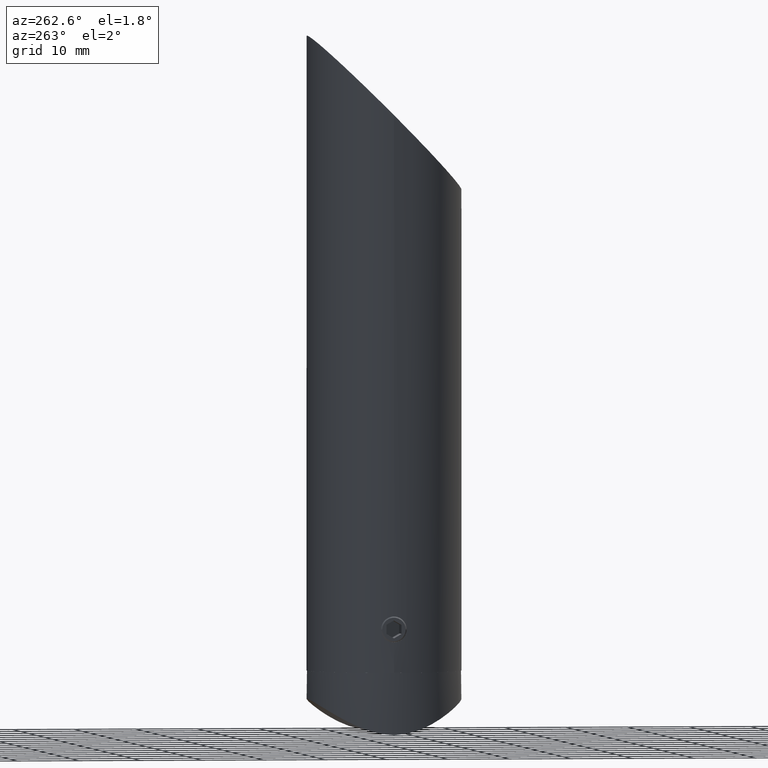
[diagram: clean part render]
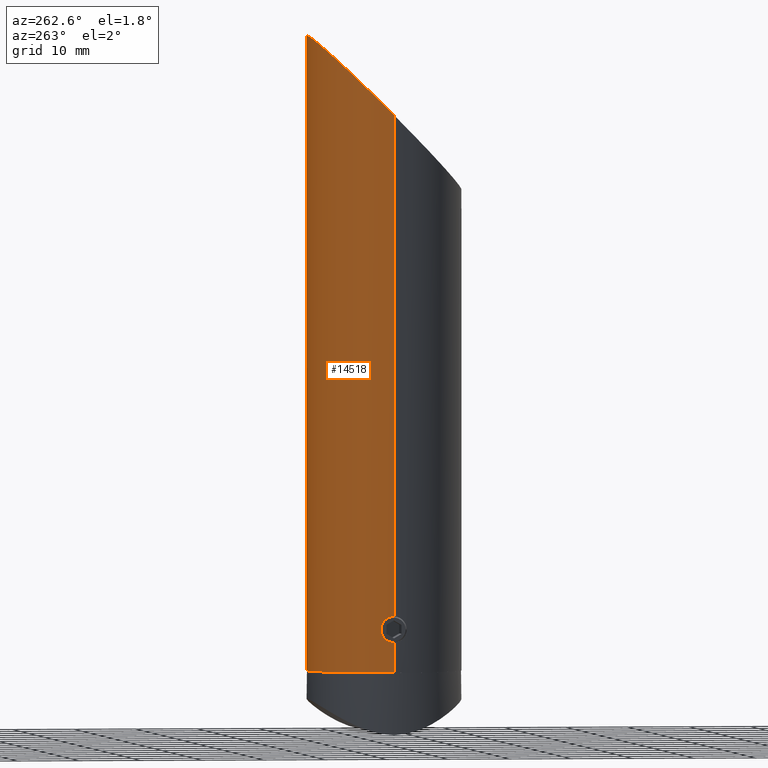
[diagram: same view with one face highlighted and labeled with its STEP entity id]
A machine part, auxiliary view. The second image highlights one B-rep face of the part: STEP entity #14518.
In plain terms, the highlighted cylindrical surface (partial cylindrical patch) has radius 12.5 mm, axis along (-0, -0, -1).
Its self-contained STEP definition (entity closure, byte-faithful):
#115 = ORIENTED_EDGE ( 'NONE', *, *, #15465, .T. ) ;
#137 = DIRECTION ( 'NONE',  ( 1.000000000000000000, 0.0000000000000000000, 0.0000000000000000000 ) ) ;
#420 = CARTESIAN_POINT ( 'NONE',  ( -12.50000000000000000, -9.798520189840709700E-023, 9.099999999999992500 ) ) ;
#421 = AXIS2_PLACEMENT_3D ( 'NONE', #12535, #4142, #1477 ) ;
#484 = CARTESIAN_POINT ( 'NONE',  ( -12.36503985059749600, 1.834949845526010000, 5.942760806442194600 ) ) ;
#547 = AXIS2_PLACEMENT_3D ( 'NONE', #13495, #13553, #137 ) ;
#552 = CARTESIAN_POINT ( 'NONE',  ( -12.50000000000000000, 0.0000000000000000000, 90.00000000000000000 ) ) ;
#573 = CARTESIAN_POINT ( 'NONE',  ( 12.35697594623955100, 1.886269248244662400, 7.933261081111706600 ) ) ;
#588 = VERTEX_POINT ( 'NONE', #1897 ) ;
#628 = CARTESIAN_POINT ( 'NONE',  ( 12.36678782163336800, 1.821665953450994900, 8.053695840792910200 ) ) ;
#689 = CARTESIAN_POINT ( 'NONE',  ( 12.33355821179406500, 2.033241785620691900, 6.457128437399847900 ) ) ;
#1145 = B_SPLINE_CURVE_WITH_KNOTS ( 'NONE', 3,
 ( #11152, #10898, #16858, #11209, #3322, #15412, #7411, #15347, #4493, #4600, #484, #14112, #5982, #7286, #10005, #8698, #16917, #7175, #5874, #9936, #4659, #3087, #15474, #1895, #12649, #10058, #1763, #16794, #1956, #420 ),
 .UNSPECIFIED., .F., .F.,
 ( 4, 2, 2, 2, 2, 2, 2, 2, 2, 2, 2, 2, 2, 2, 4 ),
 ( 0.0000000000000000000, 0.0004110766416146449000, 0.0008221532832292897900, 0.001233229924843934700, 0.001644306566458579600, 0.002466459849687869800, 0.003288613132917160000, 0.003699689774531803600, 0.004110766416146446400, 0.004521843057761090400, 0.004932919699375735300, 0.005343996340990379300, 0.005755072982605023400, 0.006166149624219666500, 0.006577226265834309700 ),
 .UNSPECIFIED. ) ;
#1242 = ORIENTED_EDGE ( 'NONE', *, *, #7181, .T. ) ;
#1477 = DIRECTION ( 'NONE',  ( -1.000000000000000000, 0.0000000000000000000, 0.0000000000000000000 ) ) ;
#1481 = ORIENTED_EDGE ( 'NONE', *, *, #10269, .F. ) ;
#1763 = CARTESIAN_POINT ( 'NONE',  ( -12.48878923632492300, 0.5462078688293376900, 9.032378496588524500 ) ) ;
#1828 = ORIENTED_EDGE ( 'NONE', *, *, #10075, .F. ) ;
#1895 = CARTESIAN_POINT ( 'NONE',  ( -12.45599735624381000, 1.054112223713820300, 8.821410081664508200 ) ) ;
#1897 = CARTESIAN_POINT ( 'NONE',  ( -12.50000000000000000, -9.798520189840709700E-023, 9.099999999999992500 ) ) ;
#1956 = CARTESIAN_POINT ( 'NONE',  ( -12.50000000000000700, 0.1371844661457303200, 9.099999999999994300 ) ) ;
#1982 = CARTESIAN_POINT ( 'NONE',  ( 12.34036526571288800, 1.992047017919822200, 7.678775810402827400 ) ) ;
#2045 = CARTESIAN_POINT ( 'NONE',  ( 12.49768328457756000, 0.2762664775608881200, 4.913662719431551200 ) ) ;
#2602 = LINE ( 'NONE', #8563, #3261 ) ;
#2894 = B_SPLINE_CURVE_WITH_KNOTS ( 'NONE', 3,
 ( #7500, #12680, #11434, #8857, #4526, #4584, #14091, #15449, #8674, #628, #573, #1982, #4636, #10035, #14148, #6021, #6071, #689, #15510, #6126, #17022, #3356, #14208, #15563, #7438, #9907, #16957, #2045, #11563, #3408 ),
 .UNSPECIFIED., .F., .F.,
 ( 4, 2, 2, 2, 2, 2, 2, 2, 2, 2, 2, 2, 2, 2, 4 ),
 ( 0.006577226265834310500, 0.007399174158320364300, 0.007810148104563390300, 0.008221122050806415500, 0.008632095997049442400, 0.009043069943292467500, 0.009454043889535494400, 0.009865017835778519500, 0.01027599178202154600, 0.01068696572826457300, 0.01109793967450759800, 0.01150891362075062400, 0.01233086151323667700, 0.01274183545947970400, 0.01315280940572272900 ),
 .UNSPECIFIED. ) ;
#3087 = CARTESIAN_POINT ( 'NONE',  ( -12.42318353256700700, 1.387157736859880200, 8.582691118360697800 ) ) ;
#3168 = LINE ( 'NONE', #4736, #15912 ) ;
#3261 = VECTOR ( 'NONE', #16836, 1000.000000000000000 ) ;
#3322 = CARTESIAN_POINT ( 'NONE',  ( -12.48225234873649100, 0.6779383900031856800, 5.007679765291994700 ) ) ;
#3356 = CARTESIAN_POINT ( 'NONE',  ( 12.38807301078725400, 1.670798748957215100, 5.720435620869854400 ) ) ;
#3408 = CARTESIAN_POINT ( 'NONE',  ( 12.50000000000000200, 0.0000000000000000000, 4.900000000000008300 ) ) ;
#4142 = DIRECTION ( 'NONE',  ( -0.0000000000000000000, -0.0000000000000000000, -1.000000000000000000 ) ) ;
#4493 = CARTESIAN_POINT ( 'NONE',  ( -12.42301355294200400, 1.388600539506596600, 5.418708178319337600 ) ) ;
#4526 = CARTESIAN_POINT ( 'NONE',  ( 12.45612933409647000, 1.052645575539819200, 8.822333673828040900 ) ) ;
#4584 = CARTESIAN_POINT ( 'NONE',  ( 12.43465773738692400, 1.281603546142738900, 8.669267826619060800 ) ) ;
#4600 = CARTESIAN_POINT ( 'NONE',  ( -12.38831158150507700, 1.678584206747421300, 5.708823716378407000 ) ) ;
#4636 = CARTESIAN_POINT ( 'NONE',  ( 12.33368337160504100, 2.032484663200840200, 7.545663143699839800 ) ) ;
#4659 = CARTESIAN_POINT ( 'NONE',  ( -12.39978901785039700, 1.582696428115955700, 8.387151678619561700 ) ) ;
#4736 = CARTESIAN_POINT ( 'NONE',  ( 12.50000000000000000, 1.530808498934191500E-015, 105.0000000000000000 ) ) ;
#4754 = CARTESIAN_POINT ( 'NONE',  ( 12.50000000000000000, 1.530808498934191500E-015, 105.0000000000000000 ) ) ;
#5874 = CARTESIAN_POINT ( 'NONE',  ( -12.36678065982762900, 1.821708534087450800, 8.053593256611792500 ) ) ;
#5982 = CARTESIAN_POINT ( 'NONE',  ( -12.32235525086057100, 2.099895493303233900, 6.724719178735083100 ) ) ;
#6010 = VECTOR ( 'NONE', #13697, 1000.000000000000000 ) ;
#6021 = CARTESIAN_POINT ( 'NONE',  ( 12.32232325748718300, 2.100083223394549200, 6.862528515129720400 ) ) ;
#6071 = CARTESIAN_POINT ( 'NONE',  ( 12.32465138950227200, 2.086551808546020800, 6.725986784028062700 ) ) ;
#6126 = CARTESIAN_POINT ( 'NONE',  ( 12.35677335900392600, 1.887587319264239600, 6.069461948601640300 ) ) ;
#7003 = CARTESIAN_POINT ( 'NONE',  ( 12.50000000000000000, 1.530808498934191500E-015, 90.00000000000000000 ) ) ;
#7175 = CARTESIAN_POINT ( 'NONE',  ( -12.35680486868406200, 1.887385030941204800, 7.930998463677292800 ) ) ;
#7181 = EDGE_CURVE ( 'NONE', #12776, #17587, #15533, .T. ) ;
#7286 = CARTESIAN_POINT ( 'NONE',  ( -12.32232857426643800, 2.100052025693295300, 7.136442818496755400 ) ) ;
#7411 = CARTESIAN_POINT ( 'NONE',  ( -12.45612162279730000, 1.052690134217551600, 5.177732227963601600 ) ) ;
#7438 = CARTESIAN_POINT ( 'NONE',  ( 12.45762628977003100, 1.059040836926600900, 5.166092215184477300 ) ) ;
#7500 = CARTESIAN_POINT ( 'NONE',  ( 12.50000000000000000, 1.530808596919075700E-015, 9.099999999999992500 ) ) ;
#7891 = DIRECTION ( 'NONE',  ( -0.0000000000000000000, -0.0000000000000000000, -1.000000000000000000 ) ) ;
#8181 = VERTEX_POINT ( 'NONE', #12807 ) ;
#8516 = CARTESIAN_POINT ( 'NONE',  ( 12.50000000000000000, 1.530808498934191500E-015, 90.00000000000000000 ) ) ;
#8563 = CARTESIAN_POINT ( 'NONE',  ( -12.50000000000000000, 0.0000000000000000000, 105.0000000000000000 ) ) ;
#8604 = CARTESIAN_POINT ( 'NONE',  ( -12.50000000000000000, 25.00000000000000000, 114.9999999999999100 ) ) ;
#8674 = CARTESIAN_POINT ( 'NONE',  ( 12.38825472392713100, 1.669446844424482800, 8.281284123256014600 ) ) ;
#8698 = CARTESIAN_POINT ( 'NONE',  ( -12.33366651879309800, 2.032587617967184000, 7.545409373495505900 ) ) ;
#8857 = CARTESIAN_POINT ( 'NONE',  ( 12.46598422166854700, 0.9302022205380891000, 8.887707130181109200 ) ) ;
#8918 = ORIENTED_EDGE ( 'NONE', *, *, #16261, .T. ) ;
#9180 = CYLINDRICAL_SURFACE ( 'NONE', #421, 12.50000000000000000 ) ;
#9786 = CARTESIAN_POINT ( 'NONE',  ( -12.50000000000000000, 0.0000000000000000000, 4.900000000000008300 ) ) ;
#9907 = CARTESIAN_POINT ( 'NONE',  ( 12.48211517639016100, 0.6802983101495024800, 5.008545626036339000 ) ) ;
#9936 = CARTESIAN_POINT ( 'NONE',  ( -12.38820982123449900, 1.669773426702773300, 8.280834664202281200 ) ) ;
#10005 = CARTESIAN_POINT ( 'NONE',  ( -12.32468933921310500, 2.086330489974693500, 7.275878408021034400 ) ) ;
#10035 = CARTESIAN_POINT ( 'NONE',  ( 12.32472383621019900, 2.086126021674019600, 7.277164922444294200 ) ) ;
#10058 = CARTESIAN_POINT ( 'NONE',  ( -12.48229535687992700, 0.6771302859603547400, 8.992587008575915400 ) ) ;
#10075 = EDGE_CURVE ( 'NONE', #12987, #588, #13015, .T. ) ;
#10269 = EDGE_CURVE ( 'NONE', #11380, #17587, #2602, .T. ) ;
#10511 = VECTOR ( 'NONE', #12910, 1000.000000000000000 ) ;
#10898 = CARTESIAN_POINT ( 'NONE',  ( -12.50000000000000000, 0.1390172217368302300, 4.900000000000006600 ) ) ;
#11152 = CARTESIAN_POINT ( 'NONE',  ( -12.50000000000000000, 0.0000000000000000000, 4.900000000000008300 ) ) ;
#11209 = CARTESIAN_POINT ( 'NONE',  ( -12.48886249823464600, 0.5444173614143040800, 4.967173697384219500 ) ) ;
#11304 = CARTESIAN_POINT ( 'NONE',  ( 12.50000000000000000, 1.530808498934191500E-015, 0.0000000000000000000 ) ) ;
#11344 = ORIENTED_EDGE ( 'NONE', *, *, #15758, .T. ) ;
#11380 = VERTEX_POINT ( 'NONE', #9786 ) ;
#11423 = CARTESIAN_POINT ( 'NONE',  ( 12.50000000000000000, 25.00000000000000000, 114.9999999999999100 ) ) ;
#11434 = CARTESIAN_POINT ( 'NONE',  ( 12.49041604070637300, 0.5510555997337230900, 9.044797116518989100 ) ) ;
#11478 = CARTESIAN_POINT ( 'NONE',  ( -12.50000000000000000, 0.0000000000000000000, 90.00000000000000000 ) ) ;
#11563 = CARTESIAN_POINT ( 'NONE',  ( 12.50000000000000400, 0.1389824923851660500, 4.900000000000008300 ) ) ;
#11928 = VERTEX_POINT ( 'NONE', #13146 ) ;
#12479 =( BOUNDED_CURVE ( )  B_SPLINE_CURVE ( 3, ( #7003, #11423, #8604, #11478 ),
 .UNSPECIFIED., .F., .T. ) 
 B_SPLINE_CURVE_WITH_KNOTS ( ( 4, 4 ),
 ( 1.570796326794896800, 4.712388980384689700 ),
 .UNSPECIFIED. ) 
 CURVE ( )  GEOMETRIC_REPRESENTATION_ITEM ( )  RATIONAL_B_SPLINE_CURVE ( ( 1.000000000000000000, 0.3333333333333333700, 0.3333333333333333700, 1.000000000000000000 ) ) 
 REPRESENTATION_ITEM ( '' )  );
#12535 = CARTESIAN_POINT ( 'NONE',  ( 0.0000000000000000000, 0.0000000000000000000, 105.0000000000000000 ) ) ;
#12649 = CARTESIAN_POINT ( 'NONE',  ( -12.46591754872634700, 0.9311833701841322200, 8.887274739406741700 ) ) ;
#12669 = ORIENTED_EDGE ( 'NONE', *, *, #12747, .T. ) ;
#12680 = CARTESIAN_POINT ( 'NONE',  ( 12.50000000000000700, 0.2743003893079650800, 9.099999999999992500 ) ) ;
#12747 = EDGE_CURVE ( 'NONE', #8181, #11928, #2894, .T. ) ;
#12776 = VERTEX_POINT ( 'NONE', #11304 ) ;
#12807 = CARTESIAN_POINT ( 'NONE',  ( 12.50000000000000000, 1.530808596919075700E-015, 9.099999999999992500 ) ) ;
#12861 = LINE ( 'NONE', #4754, #10511 ) ;
#12910 = DIRECTION ( 'NONE',  ( -0.0000000000000000000, -0.0000000000000000000, -1.000000000000000000 ) ) ;
#12987 = VERTEX_POINT ( 'NONE', #552 ) ;
#13015 = LINE ( 'NONE', #16137, #6010 ) ;
#13042 = FACE_OUTER_BOUND ( 'NONE', #14717, .T. ) ;
#13146 = CARTESIAN_POINT ( 'NONE',  ( 12.50000000000000200, 0.0000000000000000000, 4.900000000000008300 ) ) ;
#13266 = CARTESIAN_POINT ( 'NONE',  ( -12.50000000000000000, 0.0000000000000000000, 0.0000000000000000000 ) ) ;
#13495 = CARTESIAN_POINT ( 'NONE',  ( 0.0000000000000000000, 0.0000000000000000000, 0.0000000000000000000 ) ) ;
#13553 = DIRECTION ( 'NONE',  ( 0.0000000000000000000, 0.0000000000000000000, 1.000000000000000000 ) ) ;
#13697 = DIRECTION ( 'NONE',  ( -0.0000000000000000000, -0.0000000000000000000, -1.000000000000000000 ) ) ;
#14091 = CARTESIAN_POINT ( 'NONE',  ( 12.42317581721323300, 1.387160506701217400, 8.582566766686508000 ) ) ;
#14112 = CARTESIAN_POINT ( 'NONE',  ( -12.33211929933789500, 2.044525624529530900, 6.447994004894128200 ) ) ;
#14148 = CARTESIAN_POINT ( 'NONE',  ( 12.32235175367555500, 2.099916014006706400, 7.140002458742227300 ) ) ;
#14208 = CARTESIAN_POINT ( 'NONE',  ( 12.39980942031196600, 1.582460249035299500, 5.612741714926296600 ) ) ;
#14518 = ADVANCED_FACE ( 'NONE', ( #13042 ), #9180, .T. ) ;
#14717 = EDGE_LOOP ( 'NONE', ( #16005, #8918, #12669, #115, #1242, #1481, #11344, #1828 ) ) ;
#15347 = CARTESIAN_POINT ( 'NONE',  ( -12.43473698676050500, 1.280796030087368900, 5.330156330372838100 ) ) ;
#15412 = CARTESIAN_POINT ( 'NONE',  ( -12.46584558724482900, 0.9321576868460942400, 5.113197830952908700 ) ) ;
#15449 = CARTESIAN_POINT ( 'NONE',  ( 12.40001885819545200, 1.580836478937782900, 8.389132056080979900 ) ) ;
#15465 = EDGE_CURVE ( 'NONE', #11928, #12776, #3168, .T. ) ;
#15474 = CARTESIAN_POINT ( 'NONE',  ( -12.43467607152728300, 1.281348397245133200, 8.669381187940407700 ) ) ;
#15510 = CARTESIAN_POINT ( 'NONE',  ( 12.34024839959371500, 1.992762697854679300, 6.323402791177531200 ) ) ;
#15533 = CIRCLE ( 'NONE', #547, 12.50000000000000000 ) ;
#15563 = CARTESIAN_POINT ( 'NONE',  ( 12.43448438498407400, 1.292831960822521200, 5.322725580530756100 ) ) ;
#15758 = EDGE_CURVE ( 'NONE', #11380, #588, #1145, .T. ) ;
#15912 = VECTOR ( 'NONE', #7891, 1000.000000000000000 ) ;
#16005 = ORIENTED_EDGE ( 'NONE', *, *, #16690, .F. ) ;
#16137 = CARTESIAN_POINT ( 'NONE',  ( -12.50000000000000000, 0.0000000000000000000, 105.0000000000000000 ) ) ;
#16261 = EDGE_CURVE ( 'NONE', #16969, #8181, #12861, .T. ) ;
#16690 = EDGE_CURVE ( 'NONE', #16969, #12987, #12479, .T. ) ;
#16794 = CARTESIAN_POINT ( 'NONE',  ( -12.49766874747620100, 0.2765420468446728200, 9.086247800644377600 ) ) ;
#16836 = DIRECTION ( 'NONE',  ( -0.0000000000000000000, -0.0000000000000000000, -1.000000000000000000 ) ) ;
#16858 = CARTESIAN_POINT ( 'NONE',  ( -12.49768326621186400, 0.2756623671610637400, 4.913667500289799200 ) ) ;
#16917 = CARTESIAN_POINT ( 'NONE',  ( -12.34023651949286000, 1.992840048957687800, 7.676438418232381300 ) ) ;
#16957 = CARTESIAN_POINT ( 'NONE',  ( 12.48874150837816700, 0.5474908082748954900, 4.967912346927882100 ) ) ;
#16969 = VERTEX_POINT ( 'NONE', #8516 ) ;
#17022 = CARTESIAN_POINT ( 'NONE',  ( 12.36656387944243600, 1.823189292361666800, 5.948889033415843700 ) ) ;
#17587 = VERTEX_POINT ( 'NONE', #13266 ) ;